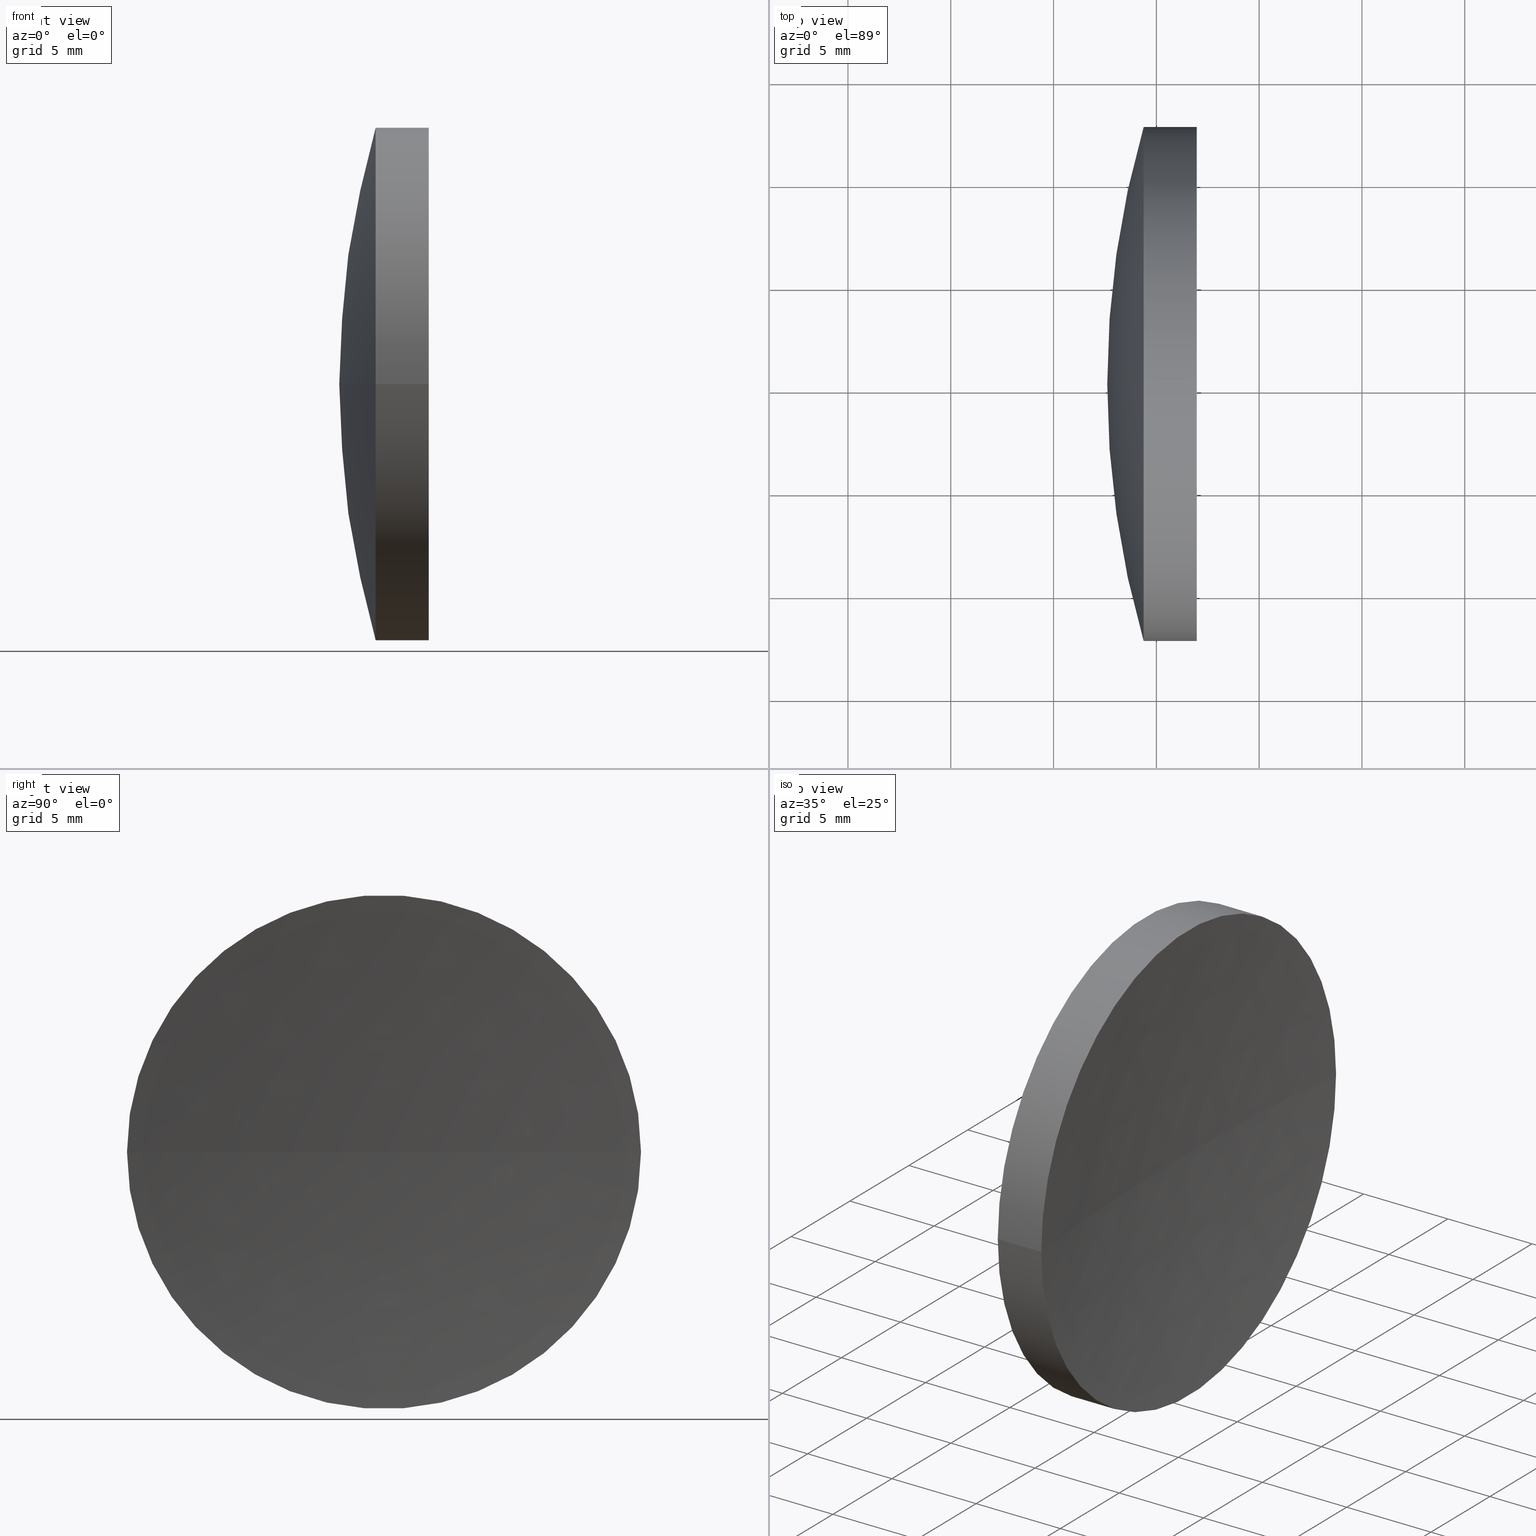
[diagram: canonical four-view strip — front | top / right | iso, engineering-drawing reading convention]
A machine part, canonical four-view strip (front | top / right | iso — engineering-drawing reading convention). The complete STEP part file that produces these views, byte-faithful:
ISO-10303-21;
HEADER;
FILE_DESCRIPTION (( 'STEP AP214' ),
    '1' );
FILE_NAME ('150006.STEP',
    '2019-07-04T05:50:52',
    ( '' ),
    ( '' ),
    'SwSTEP 2.0',
    'SolidWorks 2016',
    '' );
FILE_SCHEMA (( 'AUTOMOTIVE_DESIGN' ));
ENDSEC;

DATA;
#1 = CARTESIAN_POINT ( 'NONE',  ( 122.6121936984948200, 65.21684047094031200, 0.0000000000000000000 ) ) ;
#2 = EDGE_LOOP ( 'NONE', ( #57, #99, #107 ) ) ;
#3 = CIRCLE ( 'NONE', #121, 12.50000000000001800 ) ;
#4 = MECHANICAL_DESIGN_GEOMETRIC_PRESENTATION_REPRESENTATION (  '', ( #186 ), #68 ) ;
#5 = AXIS2_PLACEMENT_3D ( 'NONE', #71, #182, #24 ) ;
#6 = EDGE_CURVE ( 'NONE', #157, #149, #13, .T. ) ;
#7 = DIRECTION ( 'NONE',  ( -1.000000000000000000, -6.937607244762875000E-016, -0.0000000000000000000 ) ) ;
#8 = EDGE_LOOP ( 'NONE', ( #131, #117, #122 ) ) ;
#9 =( NAMED_UNIT ( * ) PLANE_ANGLE_UNIT ( ) SI_UNIT ( $, .RADIAN. ) );
#10 = FACE_OUTER_BOUND ( 'NONE', #80, .T. ) ;
#11 = FILL_AREA_STYLE ('',( #95 ) ) ;
#12 = DIRECTION ( 'NONE',  ( -6.167905692361979600E-016, 1.000000000000000000, 0.0000000000000000000 ) ) ;
#13 = CIRCLE ( 'NONE', #19, 12.50000000000001800 ) ;
#14 = CARTESIAN_POINT ( 'NONE',  ( 126.9650110756947500, 65.21684047094034000, 0.0000000000000000000 ) ) ;
#15 = UNCERTAINTY_MEASURE_WITH_UNIT (LENGTH_MEASURE( 1.000000000000000100E-005 ), #92, 'distance_accuracy_value', 'NONE');
#16 = SHAPE_DEFINITION_REPRESENTATION ( #20, #137 ) ;
#17 = CIRCLE ( 'NONE', #140, 12.50000000000004600 ) ;
#18 = VERTEX_POINT ( 'NONE', #141 ) ;
#19 = AXIS2_PLACEMENT_3D ( 'NONE', #52, #168, #78 ) ;
#20 = PRODUCT_DEFINITION_SHAPE ( 'NONE', 'NONE',  #130 ) ;
#21 = EDGE_CURVE ( 'NONE', #157, #139, #26, .T. ) ;
#22 = CARTESIAN_POINT ( 'NONE',  ( 124.3831525340183500, 77.71684047094034000, 0.0000000000000000000 ) ) ;
#23 = SURFACE_STYLE_USAGE ( .BOTH. , #165 ) ;
#24 = DIRECTION ( 'NONE',  ( 1.000000000000000000, 0.0000000000000000000, 0.0000000000000000000 ) ) ;
#25 = DIRECTION ( 'NONE',  ( 0.0000000000000000000, 1.000000000000000000, 1.224646799147353200E-016 ) ) ;
#26 = CIRCLE ( 'NONE', #28, 45.00000000000001400 ) ;
#27 =( NAMED_UNIT ( * ) SI_UNIT ( $, .STERADIAN. ) SOLID_ANGLE_UNIT ( ) );
#28 = AXIS2_PLACEMENT_3D ( 'NONE', #42, #60, #25 ) ;
#29 = ADVANCED_FACE ( 'NONE', ( #94 ), #167, .T. ) ;
#30 = CARTESIAN_POINT ( 'NONE',  ( 167.6121936984948500, 65.21684047094034000, 0.0000000000000000000 ) ) ;
#31 = ADVANCED_FACE ( 'NONE', ( #50 ), #119, .T. ) ;
#32 = CARTESIAN_POINT ( 'NONE',  ( 124.3831525340183800, 65.21684047094032600, 0.0000000000000000000 ) ) ;
#33 = EDGE_CURVE ( 'NONE', #173, #157, #44, .T. ) ;
#34 = CARTESIAN_POINT ( 'NONE',  ( 167.6121936984948500, 65.21684047094034000, 0.0000000000000000000 ) ) ;
#35 = DIRECTION ( 'NONE',  ( 1.000000000000000000, 0.0000000000000000000, 0.0000000000000000000 ) ) ;
#36 = ORIENTED_EDGE ( 'NONE', *, *, #91, .F. ) ;
#37 = CARTESIAN_POINT ( 'NONE',  ( 126.9650110756947500, 65.21684047094034000, 0.0000000000000000000 ) ) ;
#38 = PRESENTATION_STYLE_ASSIGNMENT (( #23 ) ) ;
#39 = EDGE_CURVE ( 'NONE', #149, #157, #3, .T. ) ;
#40 = DIRECTION ( 'NONE',  ( -1.000000000000000000, -6.937607244762875000E-016, -0.0000000000000000000 ) ) ;
#41 = APPLICATION_PROTOCOL_DEFINITION ( 'draft international standard', 'automotive_design', 1998, #124 ) ;
#42 = CARTESIAN_POINT ( 'NONE',  ( 167.6121936984948500, 65.21684047094034000, 0.0000000000000000000 ) ) ;
#43 = COLOUR_RGB ( '',1.000000000000000000, 1.000000000000000000, 1.000000000000000000 ) ;
#44 = LINE ( 'NONE', #185, #158 ) ;
#45 = STYLED_ITEM ( 'NONE', ( #38 ), #156 ) ;
#46 = CIRCLE ( 'NONE', #58, 45.00000000000001400 ) ;
#47 = FACE_OUTER_BOUND ( 'NONE', #169, .T. ) ;
#48 = CLOSED_SHELL ( 'NONE', ( #31, #126, #29, #128, #161, #72 ) ) ;
#49 = DIRECTION ( 'NONE',  ( -6.938893903907230300E-016, 1.000000000000000000, 0.0000000000000000000 ) ) ;
#50 = FACE_OUTER_BOUND ( 'NONE', #61, .T. ) ;
#51 = ORIENTED_EDGE ( 'NONE', *, *, #103, .T. ) ;
#52 = CARTESIAN_POINT ( 'NONE',  ( 124.3831525340183800, 65.21684047094032600, 0.0000000000000000000 ) ) ;
#53 = PRODUCT_RELATED_PRODUCT_CATEGORY ( 'part', '', ( #142 ) ) ;
#54 = DIRECTION ( 'NONE',  ( 1.110223024625155000E-015, -1.000000000000000000, 0.0000000000000000000 ) ) ;
#55 =( NAMED_UNIT ( * ) PLANE_ANGLE_UNIT ( ) SI_UNIT ( $, .RADIAN. ) );
#56 = ORIENTED_EDGE ( 'NONE', *, *, #91, .T. ) ;
#57 = ORIENTED_EDGE ( 'NONE', *, *, #39, .T. ) ;
#58 = AXIS2_PLACEMENT_3D ( 'NONE', #30, #147, #160 ) ;
#59 = CARTESIAN_POINT ( 'NONE',  ( 126.3121936984948400, 65.21684047094024100, 0.0000000000000000000 ) ) ;
#60 = DIRECTION ( 'NONE',  ( -8.496118506040342700E-032, 1.224646799147353200E-016, -1.000000000000000000 ) ) ;
#61 = EDGE_LOOP ( 'NONE', ( #56, #176, #90, #177 ) ) ;
#62 = ORIENTED_EDGE ( 'NONE', *, *, #6, .T. ) ;
#63 = PRODUCT_DEFINITION_CONTEXT ( 'detailed design', #83, 'design' ) ;
#64 = ORIENTED_EDGE ( 'NONE', *, *, #125, .F. ) ;
#65 = DIRECTION ( 'NONE',  ( 0.0000000000000000000, -1.000000000000000000, 0.0000000000000000000 ) ) ;
#66 = DIRECTION ( 'NONE',  ( -1.000000000000000000, -6.937607244762875000E-016, -0.0000000000000000000 ) ) ;
#67 = COLOUR_RGB ( '',1.000000000000000000, 1.000000000000000000, 1.000000000000000000 ) ;
#68 =( GEOMETRIC_REPRESENTATION_CONTEXT ( 3 ) GLOBAL_UNCERTAINTY_ASSIGNED_CONTEXT ( ( #15 ) ) GLOBAL_UNIT_ASSIGNED_CONTEXT ( ( #92, #9, #27 ) ) REPRESENTATION_CONTEXT ( 'NONE', 'WORKASPACE' ) );
#69 = DIRECTION ( 'NONE',  ( -1.000000000000000000, -6.937607244762875000E-016, -0.0000000000000000000 ) ) ;
#70 = CARTESIAN_POINT ( 'NONE',  ( 246.3121936984948100, 65.21684047094031200, 0.0000000000000000000 ) ) ;
#71 = CARTESIAN_POINT ( 'NONE',  ( 0.0000000000000000000, 0.0000000000000000000, 0.0000000000000000000 ) ) ;
#72 = ADVANCED_FACE ( 'NONE', ( #10 ), #123, .T. ) ;
#73 = CARTESIAN_POINT ( 'NONE',  ( 124.3831525340183800, 52.71684047094031200, -1.530808498934192100E-015 ) ) ;
#74 = SPHERICAL_SURFACE ( 'NONE', #159, 45.00000000000001400 ) ;
#75 = FACE_OUTER_BOUND ( 'NONE', #8, .T. ) ;
#76 = DIRECTION ( 'NONE',  ( -0.0000000000000000000, 0.0000000000000000000, -1.000000000000000000 ) ) ;
#77 = EDGE_LOOP ( 'NONE', ( #36, #51, #64 ) ) ;
#78 = DIRECTION ( 'NONE',  ( 1.110223024625155000E-015, -1.000000000000000000, 0.0000000000000000000 ) ) ;
#79 = CARTESIAN_POINT ( 'NONE',  ( 115.9444912979631700, 65.21684047094032600, 0.0000000000000000000 ) ) ;
#80 = EDGE_LOOP ( 'NONE', ( #113, #87, #143, #134 ) ) ;
#81 = SURFACE_STYLE_USAGE ( .BOTH. , #108 ) ;
#82 = FACE_OUTER_BOUND ( 'NONE', #77, .T. ) ;
#83 = APPLICATION_CONTEXT ( 'automotive_design' ) ;
#84 = CARTESIAN_POINT ( 'NONE',  ( 246.3121936984948100, 65.21684047094031200, 0.0000000000000000000 ) ) ;
#85 = VECTOR ( 'NONE', #66, 1000.000000000000000 ) ;
#86 = FILL_AREA_STYLE_COLOUR ( '', #43 ) ;
#87 = ORIENTED_EDGE ( 'NONE', *, *, #179, .T. ) ;
#88 =( GEOMETRIC_REPRESENTATION_CONTEXT ( 3 ) GLOBAL_UNCERTAINTY_ASSIGNED_CONTEXT ( ( #100 ) ) GLOBAL_UNIT_ASSIGNED_CONTEXT ( ( #174, #187, #184 ) ) REPRESENTATION_CONTEXT ( 'NONE', 'WORKASPACE' ) );
#89 =( LENGTH_UNIT ( ) NAMED_UNIT ( * ) SI_UNIT ( .MILLI., .METRE. ) );
#90 = ORIENTED_EDGE ( 'NONE', *, *, #6, .F. ) ;
#91 = EDGE_CURVE ( 'NONE', #173, #18, #170, .T. ) ;
#92 =( LENGTH_UNIT ( ) NAMED_UNIT ( * ) SI_UNIT ( .MILLI., .METRE. ) );
#93 = MECHANICAL_DESIGN_GEOMETRIC_PRESENTATION_REPRESENTATION (  '', ( #45 ), #178 ) ;
#94 = FACE_OUTER_BOUND ( 'NONE', #2, .T. ) ;
#95 = FILL_AREA_STYLE_COLOUR ( '', #67 ) ;
#96 = DIRECTION ( 'NONE',  ( -0.0000000000000000000, 0.0000000000000000000, -1.000000000000000000 ) ) ;
#97 = DIRECTION ( 'NONE',  ( 0.0000000000000000000, 0.0000000000000000000, -1.000000000000000000 ) ) ;
#98 = CARTESIAN_POINT ( 'NONE',  ( 115.9444912979631700, 65.21684047094032600, 0.0000000000000000000 ) ) ;
#99 = ORIENTED_EDGE ( 'NONE', *, *, #21, .T. ) ;
#100 = UNCERTAINTY_MEASURE_WITH_UNIT (LENGTH_MEASURE( 1.000000000000000100E-005 ), #174, 'distance_accuracy_value', 'NONE');
#101 = DIRECTION ( 'NONE',  ( 0.0000000000000000000, 1.000000000000000000, 1.224646799147353200E-016 ) ) ;
#102 = PRESENTATION_LAYER_ASSIGNMENT (  '', '', ( #186 ) ) ;
#103 = EDGE_CURVE ( 'NONE', #173, #190, #163, .T. ) ;
#104 = AXIS2_PLACEMENT_3D ( 'NONE', #98, #148, #110 ) ;
#105 = DIRECTION ( 'NONE',  ( -8.496118506040342700E-032, 1.224646799147353200E-016, -1.000000000000000000 ) ) ;
#106 = LINE ( 'NONE', #151, #85 ) ;
#107 = ORIENTED_EDGE ( 'NONE', *, *, #166, .F. ) ;
#108 = SURFACE_SIDE_STYLE ('',( #114 ) ) ;
#109 = DIRECTION ( 'NONE',  ( -1.000000000000000000, -6.937607244762875000E-016, -0.0000000000000000000 ) ) ;
#110 = DIRECTION ( 'NONE',  ( 1.110223024625153800E-015, -1.000000000000000000, 0.0000000000000000000 ) ) ;
#111 = SPHERICAL_SURFACE ( 'NONE', #175, 119.9999999999999700 ) ;
#112 = CARTESIAN_POINT ( 'NONE',  ( 246.3121936984948100, 65.21684047094031200, 0.0000000000000000000 ) ) ;
#113 = ORIENTED_EDGE ( 'NONE', *, *, #150, .F. ) ;
#114 = SURFACE_STYLE_FILL_AREA ( #11 ) ;
#115 = AXIS2_PLACEMENT_3D ( 'NONE', #84, #97, #129 ) ;
#116 = DIRECTION ( 'NONE',  ( 0.0000000000000000000, -0.0000000000000000000, 1.000000000000000000 ) ) ;
#117 = ORIENTED_EDGE ( 'NONE', *, *, #179, .F. ) ;
#118 = FILL_AREA_STYLE ('',( #86 ) ) ;
#119 = CYLINDRICAL_SURFACE ( 'NONE', #104, 12.50000000000003200 ) ;
#120 =( NAMED_UNIT ( * ) SI_UNIT ( $, .STERADIAN. ) SOLID_ANGLE_UNIT ( ) );
#121 = AXIS2_PLACEMENT_3D ( 'NONE', #32, #7, #54 ) ;
#122 = ORIENTED_EDGE ( 'NONE', *, *, #125, .T. ) ;
#123 = CYLINDRICAL_SURFACE ( 'NONE', #135, 12.50000000000003200 ) ;
#124 = APPLICATION_CONTEXT ( 'automotive_design' ) ;
#125 = EDGE_CURVE ( 'NONE', #18, #190, #133, .T. ) ;
#126 = ADVANCED_FACE ( 'NONE', ( #82 ), #111, .F. ) ;
#127 = CARTESIAN_POINT ( 'NONE',  ( 126.9650110756947500, 52.71684047094015600, -1.530808498934200400E-015 ) ) ;
#128 = ADVANCED_FACE ( 'NONE', ( #47 ), #74, .T. ) ;
#129 = DIRECTION ( 'NONE',  ( -6.938893903907230300E-016, 1.000000000000000000, 0.0000000000000000000 ) ) ;
#130 = PRODUCT_DEFINITION ( 'δ֪', '', #191, #63 ) ;
#131 = ORIENTED_EDGE ( 'NONE', *, *, #103, .F. ) ;
#132 = PRESENTATION_STYLE_ASSIGNMENT (( #81 ) ) ;
#133 = CIRCLE ( 'NONE', #164, 119.9999999999999700 ) ;
#134 = ORIENTED_EDGE ( 'NONE', *, *, #39, .F. ) ;
#135 = AXIS2_PLACEMENT_3D ( 'NONE', #79, #40, #144 ) ;
#136 = ORIENTED_EDGE ( 'NONE', *, *, #21, .F. ) ;
#137 = ADVANCED_BREP_SHAPE_REPRESENTATION ( '150006', ( #156, #5 ), #88 ) ;
#138 = DIRECTION ( 'NONE',  ( -6.167905692361979600E-016, 1.000000000000000000, 0.0000000000000000000 ) ) ;
#139 = VERTEX_POINT ( 'NONE', #1 ) ;
#140 = AXIS2_PLACEMENT_3D ( 'NONE', #14, #109, #65 ) ;
#141 = CARTESIAN_POINT ( 'NONE',  ( 126.9650110756947500, 77.71684047094041100, 0.0000000000000000000 ) ) ;
#142 = PRODUCT ( '150006', '150006', '', ( #171 ) ) ;
#143 = ORIENTED_EDGE ( 'NONE', *, *, #33, .T. ) ;
#144 = DIRECTION ( 'NONE',  ( 1.110223024625153800E-015, -1.000000000000000000, 0.0000000000000000000 ) ) ;
#145 = APPLICATION_PROTOCOL_DEFINITION ( 'draft international standard', 'automotive_design', 1998, #83 ) ;
#146 = AXIS2_PLACEMENT_3D ( 'NONE', #37, #69, #155 ) ;
#147 = DIRECTION ( 'NONE',  ( -0.0000000000000000000, 0.0000000000000000000, 1.000000000000000000 ) ) ;
#148 = DIRECTION ( 'NONE',  ( -1.000000000000000000, -6.937607244762875000E-016, -0.0000000000000000000 ) ) ;
#149 = VERTEX_POINT ( 'NONE', #22 ) ;
#150 = EDGE_CURVE ( 'NONE', #18, #149, #106, .T. ) ;
#151 = CARTESIAN_POINT ( 'NONE',  ( 115.9444912979631500, 77.71684047094035500, 1.530808498934195500E-015 ) ) ;
#152 = DIRECTION ( 'NONE',  ( 0.0000000000000000000, 0.0000000000000000000, -1.000000000000000000 ) ) ;
#153 = ORIENTED_EDGE ( 'NONE', *, *, #166, .T. ) ;
#154 = PRESENTATION_LAYER_ASSIGNMENT (  '', '', ( #45 ) ) ;
#155 = DIRECTION ( 'NONE',  ( 0.0000000000000000000, -1.000000000000000000, 0.0000000000000000000 ) ) ;
#156 = MANIFOLD_SOLID_BREP ( '��ת1', #48 ) ;
#157 = VERTEX_POINT ( 'NONE', #73 ) ;
#158 = VECTOR ( 'NONE', #183, 1000.000000000000000 ) ;
#159 = AXIS2_PLACEMENT_3D ( 'NONE', #34, #76, #138 ) ;
#160 = DIRECTION ( 'NONE',  ( 1.000000000000000000, 0.0000000000000000000, 0.0000000000000000000 ) ) ;
#161 = ADVANCED_FACE ( 'NONE', ( #75 ), #162, .F. ) ;
#162 = SPHERICAL_SURFACE ( 'NONE', #115, 119.9999999999999700 ) ;
#163 = CIRCLE ( 'NONE', #192, 119.9999999999999700 ) ;
#164 = AXIS2_PLACEMENT_3D ( 'NONE', #112, #116, #35 ) ;
#165 = SURFACE_SIDE_STYLE ('',( #188 ) ) ;
#166 = EDGE_CURVE ( 'NONE', #149, #139, #46, .T. ) ;
#167 = SPHERICAL_SURFACE ( 'NONE', #181, 45.00000000000001400 ) ;
#168 = DIRECTION ( 'NONE',  ( -1.000000000000000000, -6.937607244762875000E-016, -0.0000000000000000000 ) ) ;
#169 = EDGE_LOOP ( 'NONE', ( #136, #62, #153 ) ) ;
#170 = CIRCLE ( 'NONE', #146, 12.50000000000004600 ) ;
#171 = PRODUCT_CONTEXT ( 'NONE', #124, 'mechanical' ) ;
#172 = CARTESIAN_POINT ( 'NONE',  ( 167.6121936984948500, 65.21684047094034000, 0.0000000000000000000 ) ) ;
#173 = VERTEX_POINT ( 'NONE', #127 ) ;
#174 =( LENGTH_UNIT ( ) NAMED_UNIT ( * ) SI_UNIT ( .MILLI., .METRE. ) );
#175 = AXIS2_PLACEMENT_3D ( 'NONE', #180, #152, #49 ) ;
#176 = ORIENTED_EDGE ( 'NONE', *, *, #150, .T. ) ;
#177 = ORIENTED_EDGE ( 'NONE', *, *, #33, .F. ) ;
#178 =( GEOMETRIC_REPRESENTATION_CONTEXT ( 3 ) GLOBAL_UNCERTAINTY_ASSIGNED_CONTEXT ( ( #189 ) ) GLOBAL_UNIT_ASSIGNED_CONTEXT ( ( #89, #55, #120 ) ) REPRESENTATION_CONTEXT ( 'NONE', 'WORKASPACE' ) );
#179 = EDGE_CURVE ( 'NONE', #18, #173, #17, .T. ) ;
#180 = CARTESIAN_POINT ( 'NONE',  ( 246.3121936984948100, 65.21684047094031200, 0.0000000000000000000 ) ) ;
#181 = AXIS2_PLACEMENT_3D ( 'NONE', #172, #96, #12 ) ;
#182 = DIRECTION ( 'NONE',  ( 0.0000000000000000000, 0.0000000000000000000, 1.000000000000000000 ) ) ;
#183 = DIRECTION ( 'NONE',  ( -1.000000000000000000, -6.937607244762875000E-016, -0.0000000000000000000 ) ) ;
#184 =( NAMED_UNIT ( * ) SI_UNIT ( $, .STERADIAN. ) SOLID_ANGLE_UNIT ( ) );
#185 = CARTESIAN_POINT ( 'NONE',  ( 115.9444912979631800, 52.71684047094029800, 0.0000000000000000000 ) ) ;
#186 = STYLED_ITEM ( 'NONE', ( #132 ), #137 ) ;
#187 =( NAMED_UNIT ( * ) PLANE_ANGLE_UNIT ( ) SI_UNIT ( $, .RADIAN. ) );
#188 = SURFACE_STYLE_FILL_AREA ( #118 ) ;
#189 = UNCERTAINTY_MEASURE_WITH_UNIT (LENGTH_MEASURE( 1.000000000000000100E-005 ), #89, 'distance_accuracy_value', 'NONE');
#190 = VERTEX_POINT ( 'NONE', #59 ) ;
#191 = PRODUCT_DEFINITION_FORMATION_WITH_SPECIFIED_SOURCE ( '�κ�', '', #142, .NOT_KNOWN. ) ;
#192 = AXIS2_PLACEMENT_3D ( 'NONE', #70, #105, #101 ) ;
ENDSEC;
END-ISO-10303-21;
